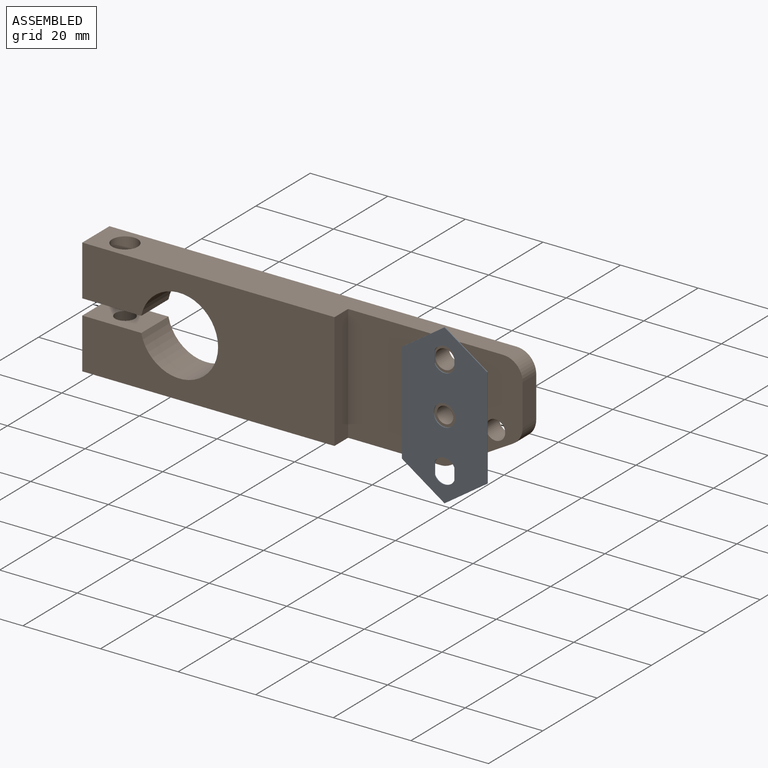
[diagram: assembled view]
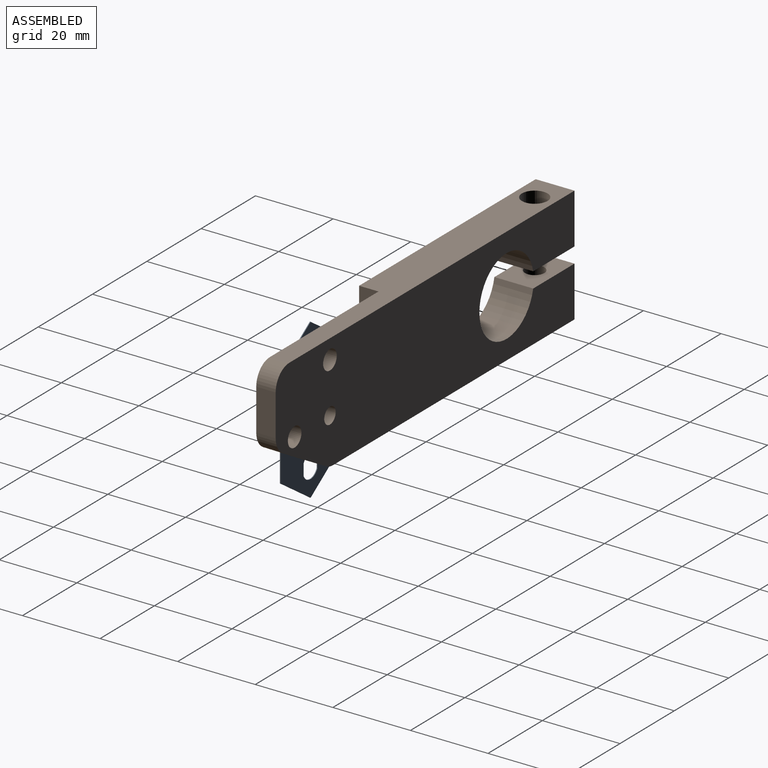
[diagram: assembled view, second angle]
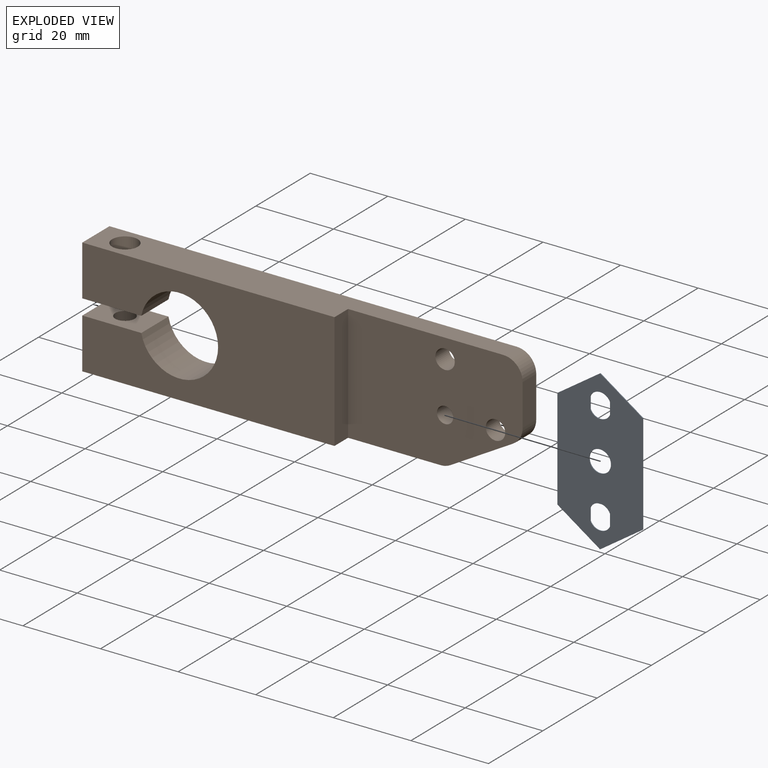
[diagram: exploded view]
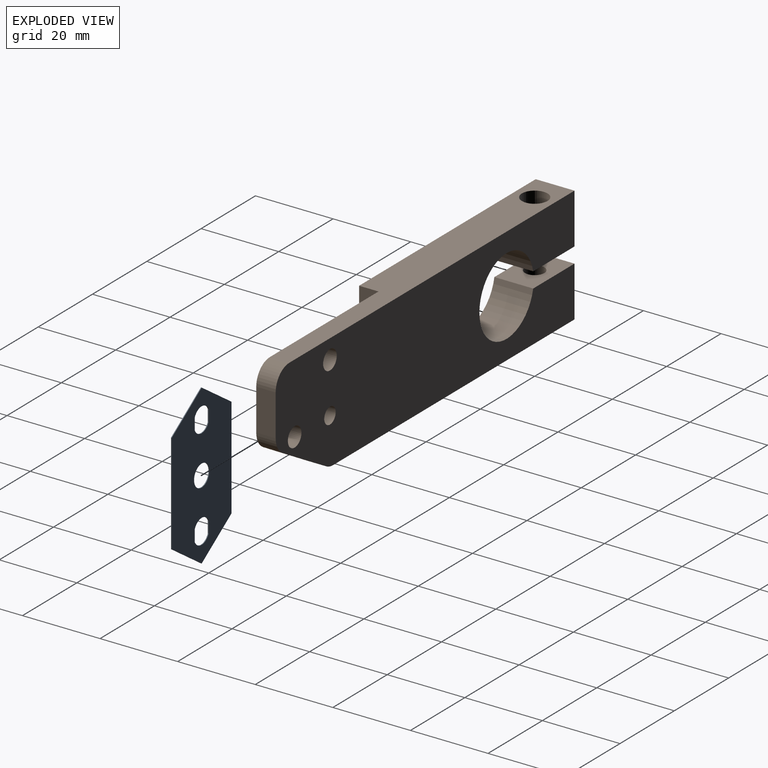
[diagram: exploded view, second angle]
ASSEMBLY  parts=2 mates=3
PART A: 17 faces, bbox 22x0.2x41 mm
  f0: cylinder r=2.8mm len=5.1mm, axis (0,1,0), area 1.3mm2, adj f1,f11,f15,f16
  f1: plane 3x0.2mm, normal (-1,0,0), area 0.6mm2, adj f0,f2,f15,f16
  f2: cylinder r=2.8mm len=5.1mm, axis (0,1,0), area 1.3mm2, adj f1,f11,f15,f16
  f3: cylinder r=2.8mm len=5.1mm, axis (0,1,0), area 1.3mm2, adj f4,f12,f15,f16
  f4: plane 3x0.2mm, normal (-1,0,0), area 0.6mm2, adj f3,f5,f15,f16
  f5: cylinder r=2.8mm len=5.1mm, axis (0,1,0), area 1.3mm2, adj f4,f12,f15,f16
  f6: plane 11x7.5mm, normal (-0.56,0,0.83), area 2.7mm2, adj f7,f13,f15,f16
  f7: plane 26x0.2mm, normal (-1,0,0), area 5.2mm2, adj f6,f8,f15,f16
  f8: plane 11x7.5mm, normal (-0.56,0,-0.83), area 2.7mm2, adj f7,f9,f15,f16
  f9: plane 11x7.5mm, normal (0.56,0,-0.83), area 2.7mm2, adj f8,f10,f15,f16
  f10: plane 26x0.2mm, normal (1,0,0), area 5.2mm2, adj f9,f13,f15,f16
  f11: plane 3x0.2mm, normal (1,0,0), area 0.6mm2, adj f0,f2,f15,f16
  f12: plane 3x0.2mm, normal (1,0,0), area 0.6mm2, adj f3,f5,f15,f16
  f13: plane 11x7.5mm, normal (0.56,0,0.83), area 2.7mm2, adj f6,f10,f15,f16
  f14: cylinder r=2.8mm len=5.6mm, axis (0,1,0), area 3.5mm2, adj f15,f16
  f15: plane 41x22mm, normal (0,-1,0), area 657.7mm2, adj f0,f1,f2,f3,f4,f5,f6,f7
  f16: plane 41x22mm, normal (0,1,0), area 657.7mm2, adj f0,f1,f2,f3,f4,f5,f6,f7
PART B: 21 faces, bbox 110x10x30 mm
  f0: plane 16.14x9.32mm, normal (0.5,0,-0.87), area 93.2mm2, adj f3,f4,f13,f15
  f1: plane 10.68x5mm, normal (1,0,0), area 53.4mm2, adj f4,f5,f13,f15
  f2: plane 105x10mm, normal (0,0,1), area 815.8mm2, adj f5,f10,f12,f13,f14,f15,f16
  f3: cylinder r=5mm len=5mm, axis (0,1,0), area 13.1mm2, adj f0,f9,f13,f15
  f4: cylinder r=5mm len=5mm, axis (0,1,0), area 26.2mm2, adj f0,f1,f13,f15
  f5: cylinder r=5mm len=5mm, axis (0,1,0), area 39.3mm2, adj f1,f2,f13,f15
  f6: cylinder r=10mm len=20mm, axis (0,1,0), area 588mm2, adj f7,f11,f12,f13
  f7: plane 15.2x10mm, normal (0,0,1), area 132.4mm2, adj f6,f8,f12,f13,f17
  f8: plane 13x10mm, normal (-1,0,0), area 130mm2, adj f7,f9,f12,f13
  f9: plane 88.86x10mm, normal (0,0,-1), area 749.6mm2, adj f3,f8,f12,f13,f14,f15,f17
  f10: plane 13x10mm, normal (-1,0,0), area 130mm2, adj f2,f11,f12,f13
  f11: plane 15.2x10mm, normal (0,0,-1), area 117.8mm2, adj f6,f10,f12,f13,f16
  f12: plane 65x30mm, normal (0,-1,0), area 1575.6mm2, adj f2,f6,f7,f8,f9,f10,f11,f14
  f13: plane 110x30mm, normal (0,1,0), area 2752.4mm2, adj f0,f1,f2,f3,f4,f5,f6,f7
  f14: plane 30x5mm, normal (1,0,0), area 150mm2, adj f2,f9,f12,f15
  f15: plane 45x30mm, normal (0,-1,0), area 1176.8mm2, adj f0,f1,f2,f3,f4,f5,f9,f14
  f16: cylinder r=3.3mm len=13mm, axis (0,0,1), area 269.5mm2, adj f2,f11
  f17: cylinder r=2.5mm len=13mm, axis (0,0,-1), area 204.2mm2, adj f7,f9
  f18: cylinder r=2.1mm len=5mm, axis (0,-1,0), area 66mm2, adj f13,f15
  f19: cylinder r=2.5mm len=5mm, axis (0,-1,0), area 78.5mm2, adj f13,f15
  f20: cylinder r=2.5mm len=5mm, axis (0,-1,0), area 78.5mm2, adj f13,f15
PLACE A t=(-56.51,-61.74,4.28)mm
PLACE B t=(-105.2,-56.74,-2.91)mm
MATE planar B.f15 <-> A.f14  axis (0,-1,0) through (-84.47,-61.74,1.09)mm
MATE parallel B.f1 <-> A.f10  axis (1,0,0) through (-59.99,-59.24,4.81)mm
MATE cylindrical B.f18 <-> A.f14  axis (0,-1,0) through (-79.99,-61.74,-2.87)mm
